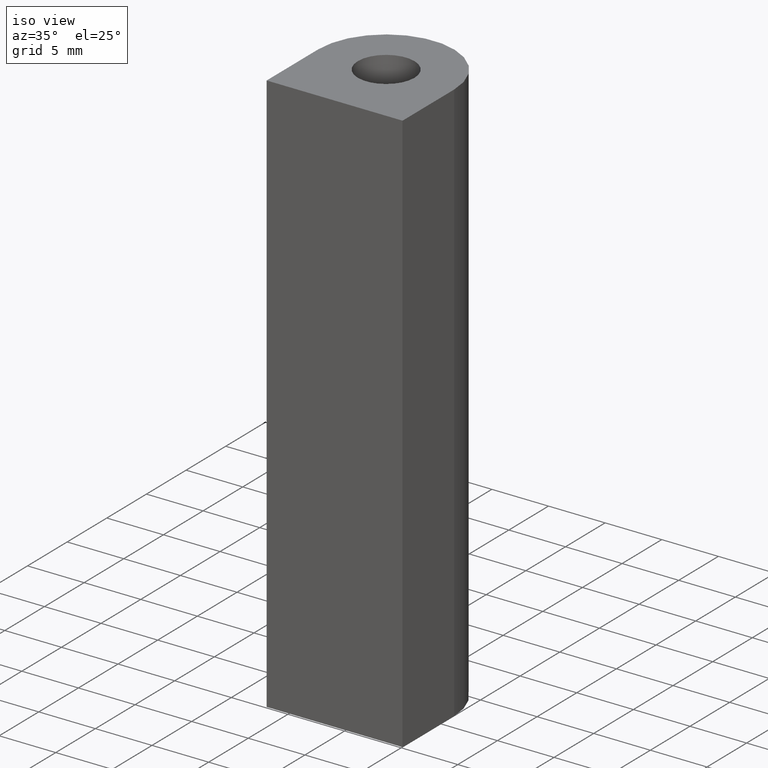
[diagram: clean part render]
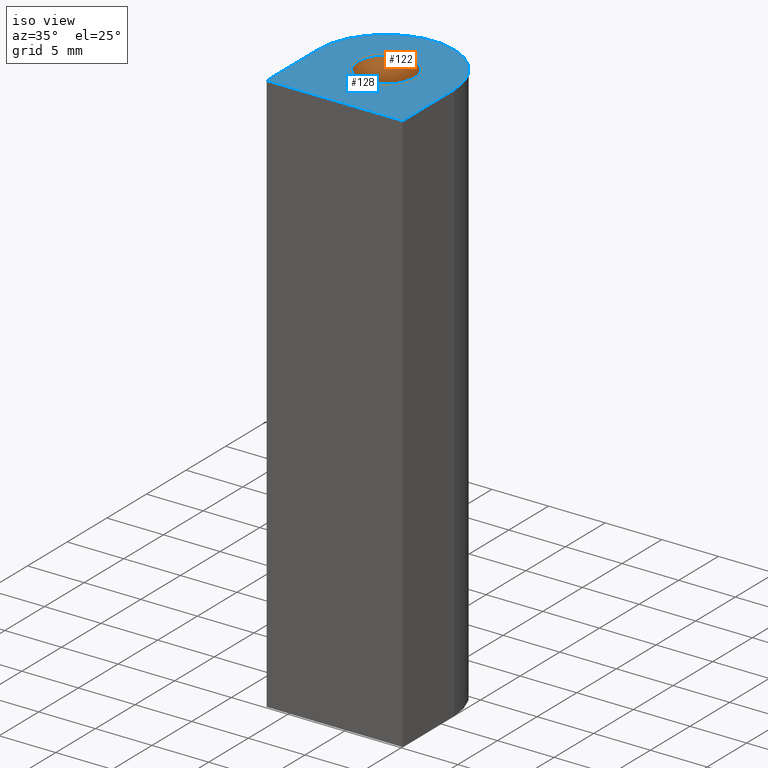
[diagram: same view with the hole feature highlighted: cylindrical wall and planar end face, labeled with their STEP entity ids]
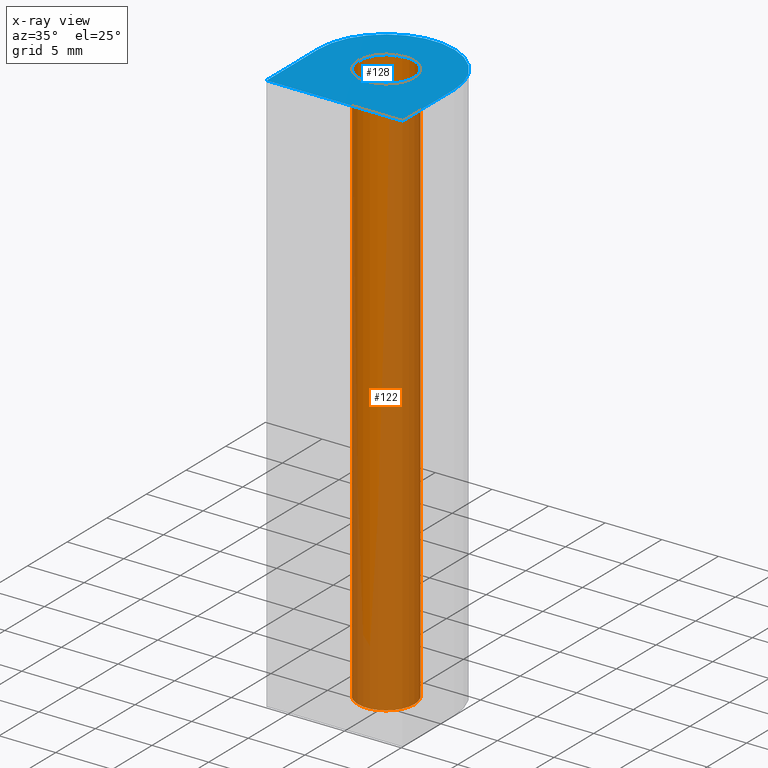
[diagram: x-ray of the same camera — body ghosted, the hole faces saturated]
A machine part, iso view. The highlighted faces form one hole feature of diameter 5 mm: the cylindrical wall (entity #122, orange) and its adjacent planar end face (entity #128, blue) — they share a circular edge in the B-rep.
The next image is the same camera in x-ray (body ghosted, the hole faces saturated) — the bore reads through the body.
Wall:
#23=FACE_OUTER_BOUND('',#30,.T.);
#30=EDGE_LOOP('',(#90,#91,#92,#93));
#39=LINE('',#203,#50);
#50=VECTOR('',#169,2.5);
#61=CIRCLE('',#153,2.5);
#62=CIRCLE('',#154,2.5);
#65=VERTEX_POINT('',#200);
#66=VERTEX_POINT('',#202);
#75=EDGE_CURVE('',#65,#65,#61,.T.);
#76=EDGE_CURVE('',#65,#66,#39,.T.);
#77=EDGE_CURVE('',#66,#66,#62,.T.);
#90=ORIENTED_EDGE('',*,*,#75,.F.);
#91=ORIENTED_EDGE('',*,*,#76,.T.);
#92=ORIENTED_EDGE('',*,*,#77,.F.);
#93=ORIENTED_EDGE('',*,*,#76,.F.);
#120=CYLINDRICAL_SURFACE('',#152,2.5);
#122=ADVANCED_FACE('',(#23),#120,.F.);
#152=AXIS2_PLACEMENT_3D('',#199,#165,#166);
#153=AXIS2_PLACEMENT_3D('',#201,#167,#168);
#154=AXIS2_PLACEMENT_3D('',#204,#170,#171);
#165=DIRECTION('center_axis',(0.,0.,1.));
#166=DIRECTION('ref_axis',(-1.,0.,0.));
#167=DIRECTION('center_axis',(0.,0.,1.));
#168=DIRECTION('ref_axis',(-1.,0.,0.));
#169=DIRECTION('',(0.,0.,1.));
#170=DIRECTION('center_axis',(0.,0.,-1.));
#171=DIRECTION('ref_axis',(-1.,0.,0.));
#199=CARTESIAN_POINT('Origin',(0.,0.25,0.));
#200=CARTESIAN_POINT('',(2.5,0.250000000000001,-25.));
#201=CARTESIAN_POINT('Origin',(0.,0.25,-25.));
#202=CARTESIAN_POINT('',(2.5,0.250000000000001,25.));
#203=CARTESIAN_POINT('',(2.5,0.250000000000001,0.));
#204=CARTESIAN_POINT('Origin',(0.,0.25,25.));
End face:
#17=FACE_BOUND('',#38,.T.);
#22=PLANE('',#162);
#29=FACE_OUTER_BOUND('',#37,.T.);
#37=EDGE_LOOP('',(#115,#116,#117,#118));
#38=EDGE_LOOP('',(#119));
#43=LINE('',#217,#54);
#47=LINE('',#226,#58);
#49=LINE('',#229,#60);
#54=VECTOR('',#181,10.);
#58=VECTOR('',#191,10.);
#60=VECTOR('',#195,10.);
#62=CIRCLE('',#154,2.5);
#64=CIRCLE('',#159,6.);
#66=VERTEX_POINT('',#202);
#71=VERTEX_POINT('',#215);
#72=VERTEX_POINT('',#216);
#73=VERTEX_POINT('',#221);
#74=VERTEX_POINT('',#225);
#77=EDGE_CURVE('',#66,#66,#62,.T.);
#82=EDGE_CURVE('',#71,#72,#43,.T.);
#85=EDGE_CURVE('',#72,#73,#64,.T.);
#87=EDGE_CURVE('',#73,#74,#47,.T.);
#89=EDGE_CURVE('',#74,#71,#49,.T.);
#115=ORIENTED_EDGE('',*,*,#82,.F.);
#116=ORIENTED_EDGE('',*,*,#89,.F.);
#117=ORIENTED_EDGE('',*,*,#87,.F.);
#118=ORIENTED_EDGE('',*,*,#85,.F.);
#119=ORIENTED_EDGE('',*,*,#77,.T.);
#128=ADVANCED_FACE('',(#29,#17),#22,.T.);
#154=AXIS2_PLACEMENT_3D('',#204,#170,#171);
#159=AXIS2_PLACEMENT_3D('',#222,#186,#187);
#162=AXIS2_PLACEMENT_3D('',#230,#196,#197);
#170=DIRECTION('center_axis',(0.,0.,-1.));
#171=DIRECTION('ref_axis',(-1.,0.,0.));
#181=DIRECTION('',(1.70803542250024E-16,1.,0.));
#186=DIRECTION('center_axis',(0.,0.,-1.));
#187=DIRECTION('ref_axis',(1.,1.85037170770859E-16,0.));
#191=DIRECTION('',(3.41607084500048E-16,-1.,0.));
#195=DIRECTION('',(-1.,0.,0.));
#196=DIRECTION('center_axis',(0.,0.,1.));
#197=DIRECTION('ref_axis',(1.,0.,0.));
#202=CARTESIAN_POINT('',(2.5,0.250000000000001,25.));
#204=CARTESIAN_POINT('Origin',(0.,0.25,25.));
#215=CARTESIAN_POINT('',(-6.,-6.25,25.));
#216=CARTESIAN_POINT('',(-6.,0.25,25.));
#217=CARTESIAN_POINT('',(-6.,0.25,25.));
#221=CARTESIAN_POINT('',(6.,0.25,25.));
#222=CARTESIAN_POINT('Origin',(0.,0.249999999999999,25.));
#225=CARTESIAN_POINT('',(6.,-6.25,25.));
#226=CARTESIAN_POINT('',(6.,-6.25,25.));
#229=CARTESIAN_POINT('',(-6.,-6.25,25.));
#230=CARTESIAN_POINT('Origin',(-8.32667268468867E-16,-0.885457507234779,
25.));